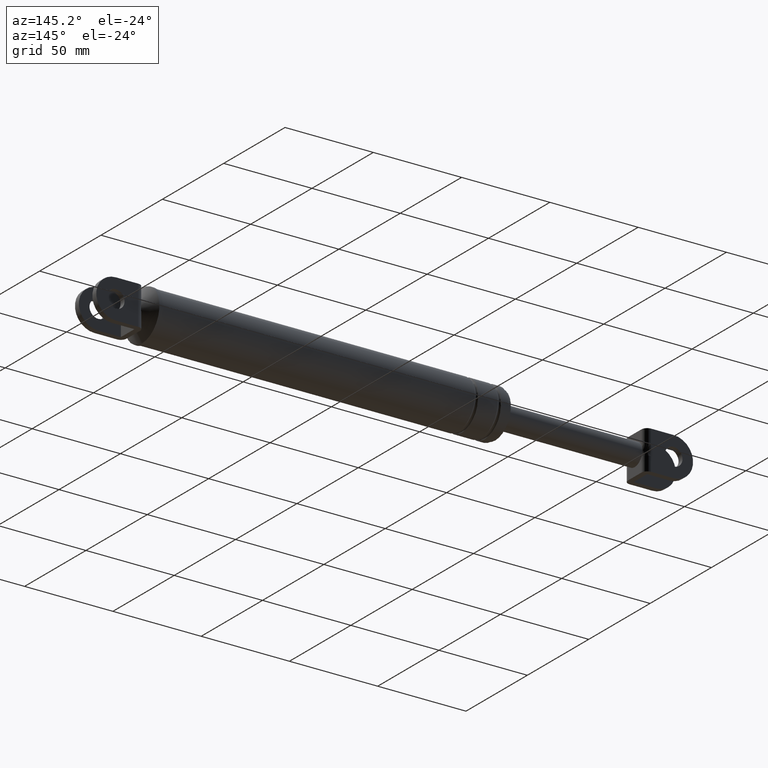
[diagram: clean part render]
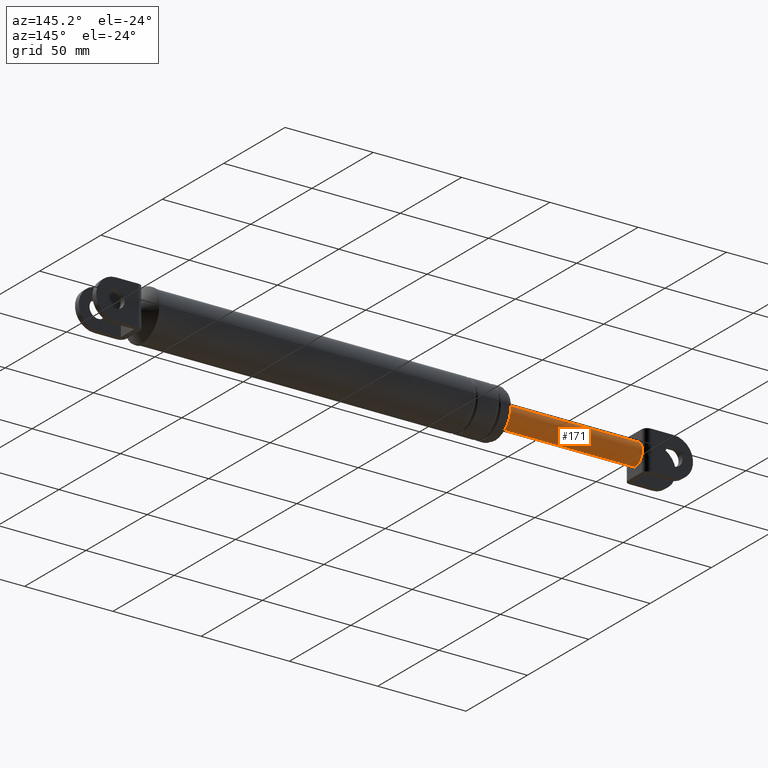
[diagram: same view with one face highlighted and labeled with its STEP entity id]
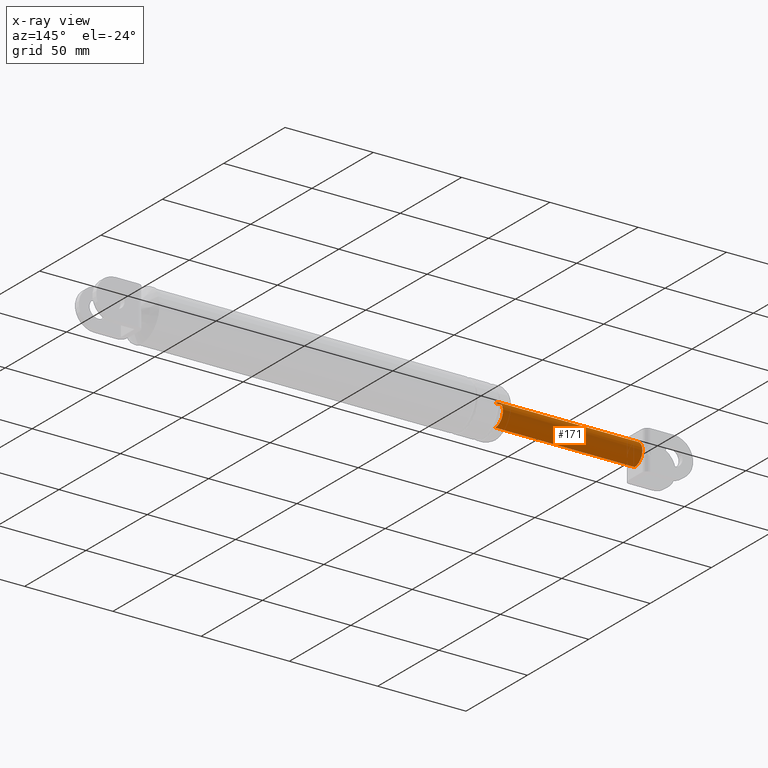
[diagram: x-ray of the same camera — body ghosted, the highlighted face saturated]
A machine part, auxiliary view. The second image highlights one B-rep face of the part: STEP entity #171.
The next image is the same camera in x-ray: the body ghosted, the highlighted face saturated — about 0% of this face is hidden behind the body in this view.
In plain terms, the highlighted cylindrical surface (edge-blend (fillet) strip) has radius 6.25 mm, axis along (-1, -0, -0).
Its self-contained STEP definition (entity closure, byte-faithful):
#171=ADVANCED_FACE('',(#777),#776,.T.);
#776=CYLINDRICAL_SURFACE('',#1907,6.25000000000E+000);
#777=FACE_OUTER_BOUND('',#1908,.T.);
#1904=CARTESIAN_POINT('',(7.02714139120E+001,3.82702124734E-016,1.87814501197E+002));
#1905=DIRECTION('',(-1.00000000000E+000,-0.00000000000E+000,-0.00000000000E+000));
#1906=DIRECTION('',(0.00000000000E+000,6.93391490766E-014,-1.00000000000E+000));
#1907=AXIS2_PLACEMENT_3D('',#1904,#1905,#1906);
#1908=EDGE_LOOP('',(#2219,#2220,#2221,#2222,#2223,#2224));
#2219=ORIENTED_EDGE('',*,*,#2390,.F.);
#2220=ORIENTED_EDGE('',*,*,#2391,.T.);
#2221=ORIENTED_EDGE('',*,*,#2356,.F.);
#2222=ORIENTED_EDGE('',*,*,#2345,.F.);
#2223=ORIENTED_EDGE('',*,*,#2366,.F.);
#2224=ORIENTED_EDGE('',*,*,#2392,.F.);
#2345=EDGE_CURVE('',#3082,#3034,#3089,.T.);
#2356=EDGE_CURVE('',#3034,#3163,#3164,.T.);
#2366=EDGE_CURVE('',#3224,#3082,#3231,.T.);
#2390=EDGE_CURVE('',#3382,#3381,#3389,.T.);
#2391=EDGE_CURVE('',#3382,#3163,#3395,.T.);
#2392=EDGE_CURVE('',#3381,#3224,#3401,.T.);
#3034=VERTEX_POINT('',#3833);
#3082=VERTEX_POINT('',#3870);
#3089=CIRCLE('',#3878,6.25000000000E+000);
#3163=VERTEX_POINT('',#3929);
#3164=CIRCLE('',#3933,6.25000000000E+000);
#3224=VERTEX_POINT('',#3968);
#3231=CIRCLE('',#3976,6.25000000000E+000);
#3381=VERTEX_POINT('',#4063);
#3382=VERTEX_POINT('',#4064);
#3389=CIRCLE('',#4072,6.25000000000E+000);
#3395=(BOUNDED_CURVE() B_SPLINE_CURVE(1,(#4073,#4074),.UNSPECIFIED.,.F.,.F.) B_SPLINE_CURVE_WITH_KNOTS((2,2),(8.33333332085E-002,9.16666666563E-001),.UNSPECIFIED.) CURVE() GEOMETRIC_REPRESENTATION_ITEM() RATIONAL_B_SPLINE_CURVE((1.00000000000E+000,1.00000000000E+000)) REPRESENTATION_ITEM('') );
#3401=(BOUNDED_CURVE() B_SPLINE_CURVE(1,(#4075,#4076),.UNSPECIFIED.,.F.,.F.) B_SPLINE_CURVE_WITH_KNOTS((2,2),(8.33333333333E-002,9.16666666667E-001),.UNSPECIFIED.) CURVE() GEOMETRIC_REPRESENTATION_ITEM() RATIONAL_B_SPLINE_CURVE((7.50000000000E-001,7.50000000000E-001)) REPRESENTATION_ITEM('') );
#3833=CARTESIAN_POINT('',(7.81714139120E+001,5.49999700000E+000,1.84845910117E+002));
#3870=CARTESIAN_POINT('',(7.81714139120E+001,5.49999700000E+000,1.90783092276E+002));
#3875=CARTESIAN_POINT('',(7.81714139120E+001,-2.22044604925E-013,1.87814501196E+002));
#3876=DIRECTION('',(-1.00000000000E+000,-1.42904278619E-014,-7.03319253989E-015));
#3877=DIRECTION('',(1.59161572810E-014,-8.79999520000E-001,-4.74974572793E-001));
#3878=AXIS2_PLACEMENT_3D('',#3875,#3876,#3877);
#3929=CARTESIAN_POINT('',(7.81714139120E+001,-3.83939900940E-012,1.81564501197E+002));
#3930=CARTESIAN_POINT('',(7.81714139120E+001,7.94031507212E-013,1.87814501196E+002));
#3931=DIRECTION('',(-1.00000000000E+000,-2.63478623127E-016,-4.88154682721E-016));
#3932=DIRECTION('',(-0.00000000000E+000,-8.79999520000E-001,4.74974572793E-001));
#3933=AXIS2_PLACEMENT_3D('',#3930,#3931,#3932);
#3968=CARTESIAN_POINT('',(7.81714139120E+001,7.57709754158E-007,1.94064501197E+002));
#3973=CARTESIAN_POINT('',(7.81714139120E+001,2.67785793540E-013,1.87814501197E+002));
#3974=DIRECTION('',(-1.00000000000E+000,1.05391438099E-015,1.95261852427E-015));
#3975=DIRECTION('',(-0.00000000000E+000,8.79999520000E-001,-4.74974572793E-001));
#3976=AXIS2_PLACEMENT_3D('',#3973,#3974,#3975);
#4063=CARTESIAN_POINT('',(1.57171413912E+002,3.82702124734E-016,1.94064501197E+002));
#4064=CARTESIAN_POINT('',(1.57171413912E+002,8.88178419700E-016,1.81564501197E+002));
#4069=CARTESIAN_POINT('',(1.57171413912E+002,3.82702124734E-016,1.87814501197E+002));
#4070=DIRECTION('',(1.00000000000E+000,0.00000000000E+000,-0.00000000000E+000));
#4071=DIRECTION('',(0.00000000000E+000,-1.22460635382E-016,1.00000000000E+000));
#4072=AXIS2_PLACEMENT_3D('',#4069,#4070,#4071);
#4073=CARTESIAN_POINT('',(1.57171413924E+002,4.33752383853E-013,1.81564501197E+002));
#4074=CARTESIAN_POINT('',(7.81714139218E+001,4.33752383853E-013,1.81564501197E+002));
#4075=CARTESIAN_POINT('',(1.57171413912E+002,-4.33135009340E-013,1.94064501197E+002));
#4076=CARTESIAN_POINT('',(7.81714139120E+001,-4.33135009340E-013,1.94064501197E+002));